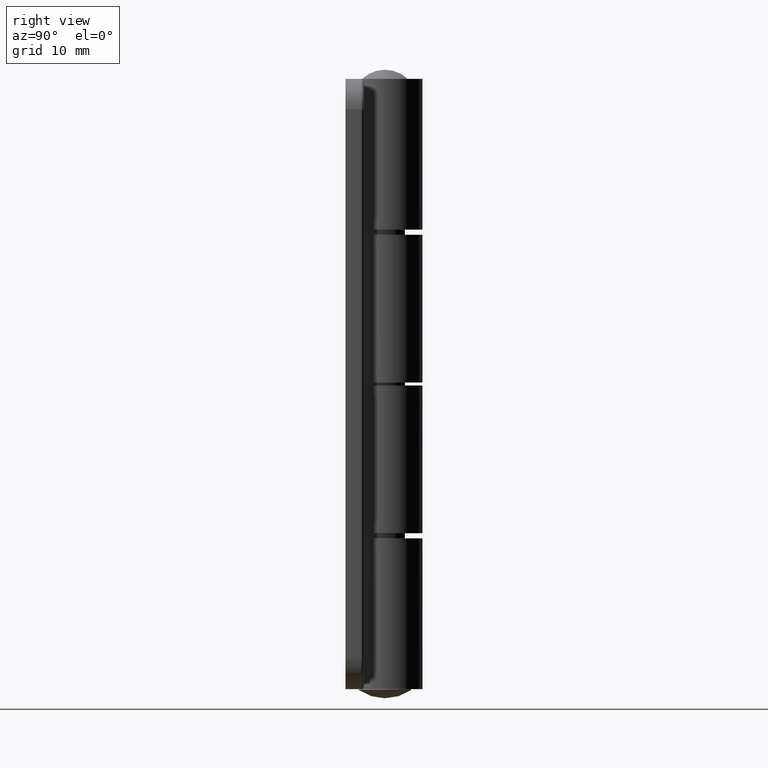
[diagram: clean part render]
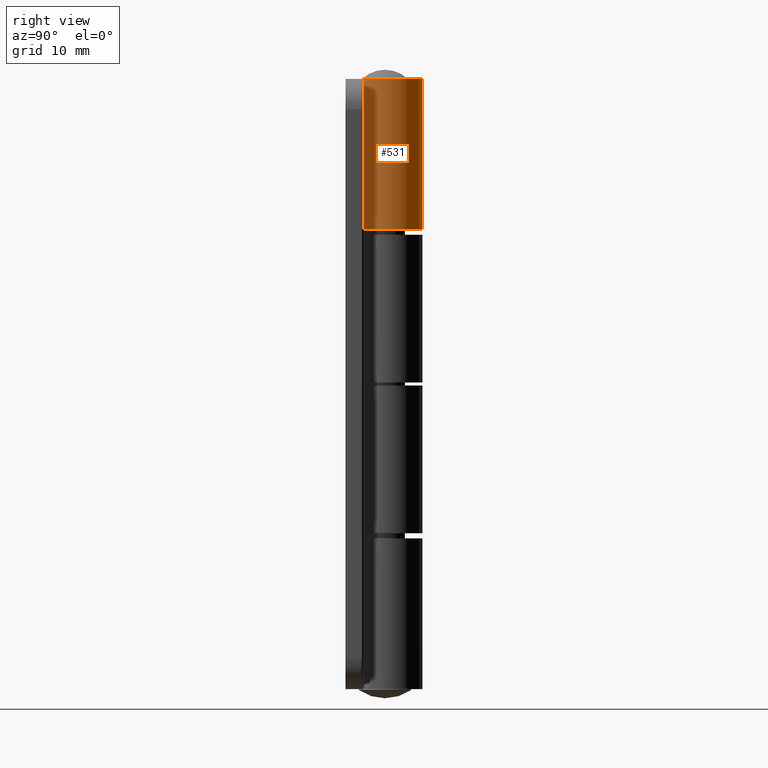
[diagram: same view with one face highlighted and labeled with its STEP entity id]
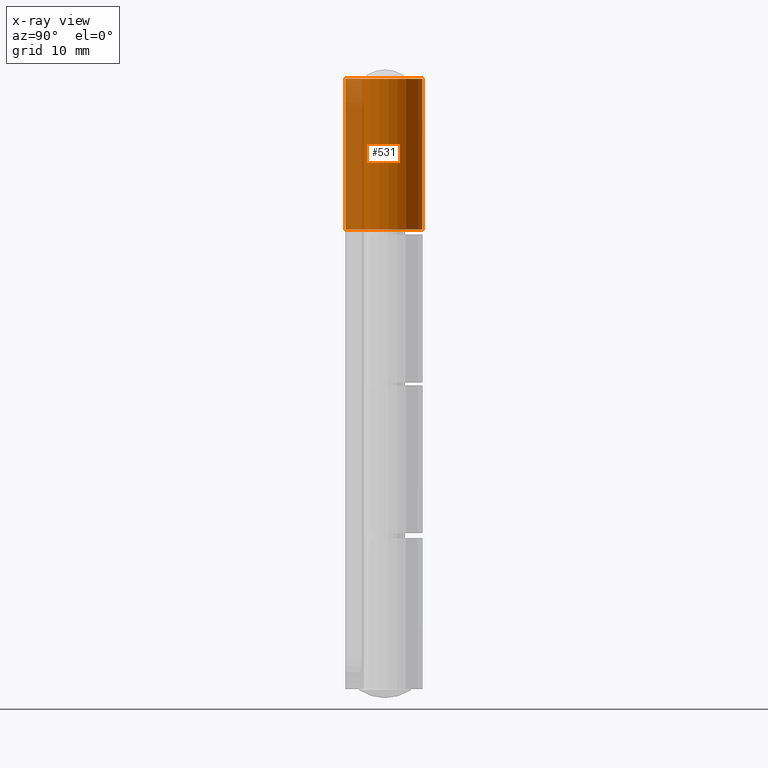
[diagram: x-ray of the same camera — body ghosted, the highlighted face saturated]
A machine part, right view. The second image highlights one B-rep face of the part: STEP entity #531.
The next image is the same camera in x-ray: the body ghosted, the highlighted face saturated — about 24% of this face is hidden behind the body in this view.
In plain terms, the highlighted cylindrical surface (partial cylindrical patch) has radius 6.3 mm, axis along (0, 0, -1).
Its self-contained STEP definition (entity closure, byte-faithful):
#83=LINE('',#919,#124);
#87=LINE('',#926,#128);
#124=VECTOR('',#732,24.7);
#128=VECTOR('',#742,24.7);
#139=CYLINDRICAL_SURFACE('',#591,6.3);
#164=FACE_OUTER_BOUND('',#196,.T.);
#196=EDGE_LOOP('',(#462,#463,#464,#465));
#225=CIRCLE('',#566,6.3);
#237=CIRCLE('',#587,6.3);
#259=VERTEX_POINT('',#843);
#260=VERTEX_POINT('',#845);
#285=VERTEX_POINT('',#912);
#286=VERTEX_POINT('',#914);
#313=EDGE_CURVE('',#259,#260,#225,.T.);
#347=EDGE_CURVE('',#286,#285,#237,.T.);
#350=EDGE_CURVE('',#259,#286,#83,.T.);
#354=EDGE_CURVE('',#260,#285,#87,.T.);
#462=ORIENTED_EDGE('',*,*,#347,.T.);
#463=ORIENTED_EDGE('',*,*,#354,.F.);
#464=ORIENTED_EDGE('',*,*,#313,.F.);
#465=ORIENTED_EDGE('',*,*,#350,.T.);
#531=ADVANCED_FACE('',(#164),#139,.T.);
#566=AXIS2_PLACEMENT_3D('',#846,#662,#663);
#587=AXIS2_PLACEMENT_3D('',#915,#726,#727);
#591=AXIS2_PLACEMENT_3D('',#925,#740,#741);
#662=DIRECTION('center_axis',(0.,0.,1.));
#663=DIRECTION('ref_axis',(-5.19866336927653E-15,-1.,0.));
#726=DIRECTION('center_axis',(0.,0.,1.));
#727=DIRECTION('ref_axis',(-5.19866336927653E-15,-1.,0.));
#732=DIRECTION('',(0.,0.,-1.));
#740=DIRECTION('center_axis',(0.,0.,-1.));
#741=DIRECTION('ref_axis',(-5.19866336927653E-15,-1.,0.));
#742=DIRECTION('',(0.,0.,-1.));
#843=CARTESIAN_POINT('',(0.,0.,0.));
#845=CARTESIAN_POINT('',(6.68488115725261E-14,12.6,0.));
#846=CARTESIAN_POINT('Origin',(3.27515792264421E-14,6.3,0.));
#912=CARTESIAN_POINT('',(6.68488115725261E-14,12.6,-24.7));
#914=CARTESIAN_POINT('',(0.,0.,-24.7));
#915=CARTESIAN_POINT('Origin',(3.27515792264421E-14,6.3,-24.7));
#919=CARTESIAN_POINT('',(0.,0.,0.));
#925=CARTESIAN_POINT('Origin',(3.27515792264421E-14,6.3,0.));
#926=CARTESIAN_POINT('',(6.68488115725261E-14,12.6,0.));